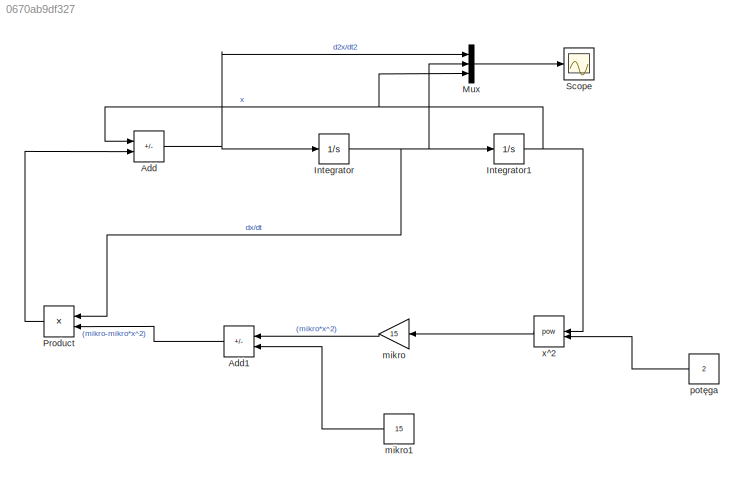
MODEL slx_0670ab9df327
KIND model
CONFIG AbsTol = auto
CONFIG EnableMultiTasking = off
CONFIG FixedStep = auto
CONFIG MaxStep = auto
CONFIG MinStep = auto
CONFIG RelTol = 1e-3
CONFIG SampleTimeConstraint = Unconstrained
CONFIG SolverName = VariableStepAuto
CONFIG StartTime = 0.0
CONFIG StopTime = 1000
BLOCK [Sum] Add
  IconShape = rectangular
  Inputs = -+
BLOCK [Sum] Add1
  IconShape = rectangular
  Inputs = -+
  NameLocation = top
BLOCK [Integrator] Integrator
  InitialCondition = 1
BLOCK [Integrator] Integrator1
  InitialCondition = 2
BLOCK [Mux] Mux
  DisplayOption = bar
  Inputs = 3
BLOCK [Product] Product
  NameLocation = top
BLOCK [Scope] Scope
  Floating = off
  NumInputPorts = 1
  ScopeSpecificationString = Simulink.scopes.TimeScopeBlockCfg('CurrentConfiguration', extmgr.ConfigurationSet(extmgr.Configuration('Core','General UI',true),extmgr.Configuration('Core','Source UI',true),extmgr.Configuration('Sources','WiredSimulink',true),extmgr.Configuration('Visuals','Time Domain',true,'SerializedDisplays',{struct('MinYLimReal','-424.89087','MaxYLimReal','423.3626','YLabelReal','','MinYLimMag',' 0.00000','...<+1492ch>
BLOCK [Gain] mikro
  Gain = 15
  NameLocation = top
BLOCK [Constant] mikro1
  NameLocation = top
  Value = 15
BLOCK [Constant] potęga
  NameLocation = top
  Value = 2
BLOCK [Math] x^2
  NameLocation = top
  Operator = pow
LINE Add1:1 -> Product:2
NET Add:1 -> Integrator:1, Mux:1
NET Integrator1:1 -> Add:1, Mux:3, x^2:1
NET Integrator:1 -> Integrator1:1, Mux:2, Product:1
LINE Mux:1 -> Scope:1
LINE Product:1 -> Add:2
LINE mikro1:1 -> Add1:2
LINE mikro:1 -> Add1:1
LINE potęga:1 -> x^2:2
LINE x^2:1 -> mikro:1
note: NET lines group one-source signal fan-out (src -> all destinations, sorted); 1:1 wires keep LINE
